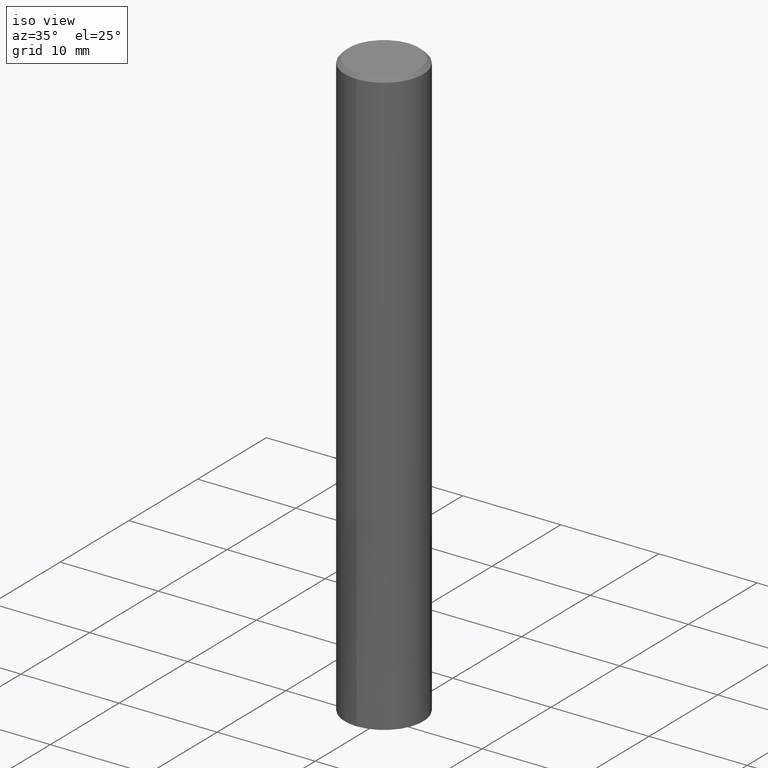
[diagram: clean part render]
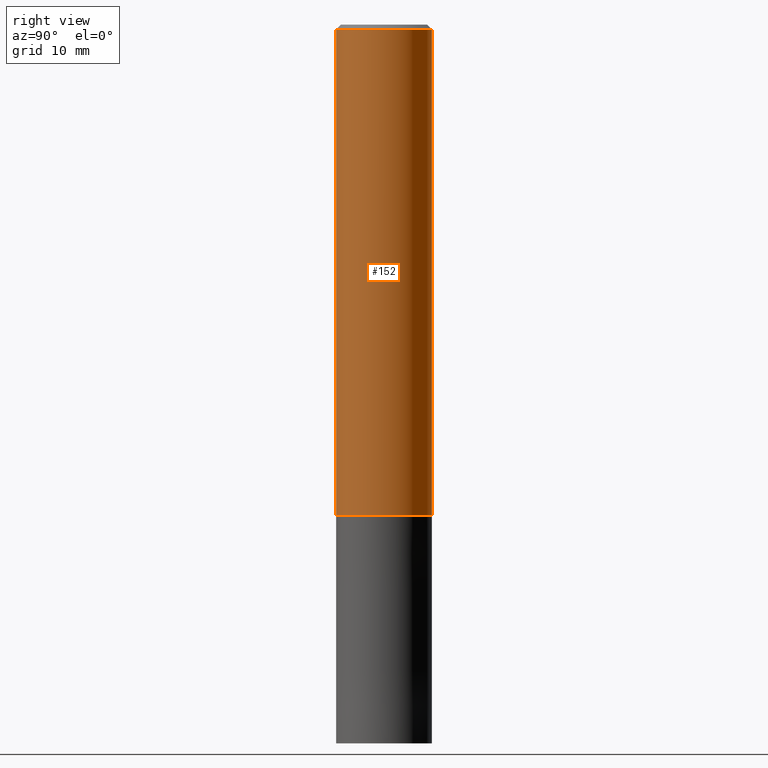
[diagram: tour spotlight — one face highlighted and labeled with its STEP entity id]
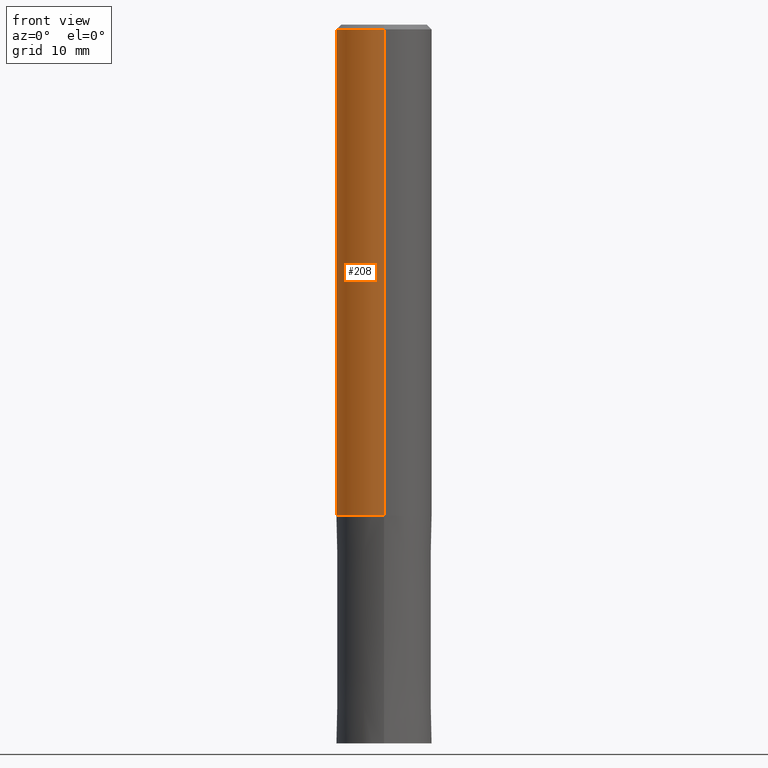
[diagram: tour spotlight — one face highlighted and labeled with its STEP entity id]
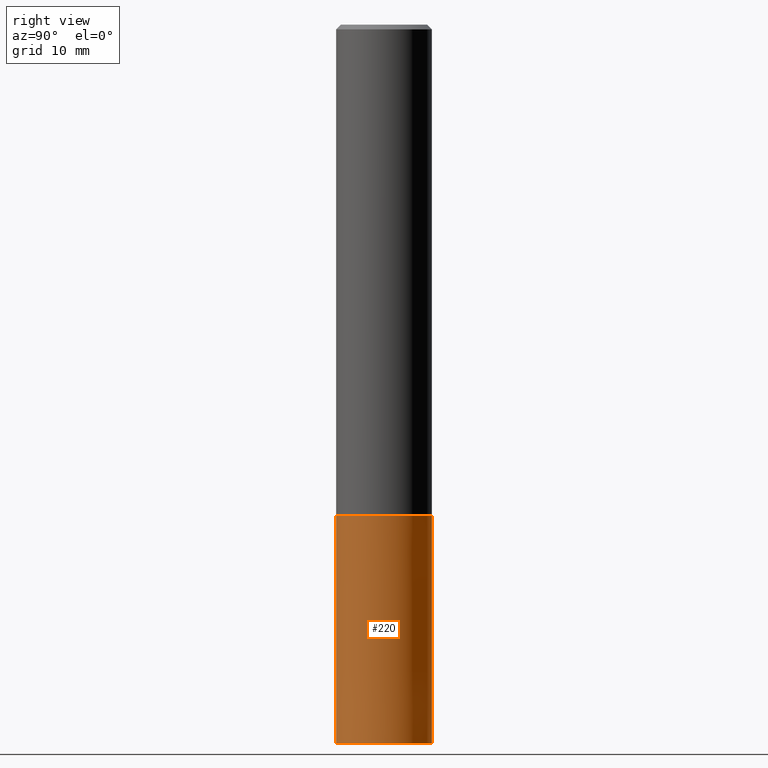
[diagram: tour spotlight — one face highlighted and labeled with its STEP entity id]
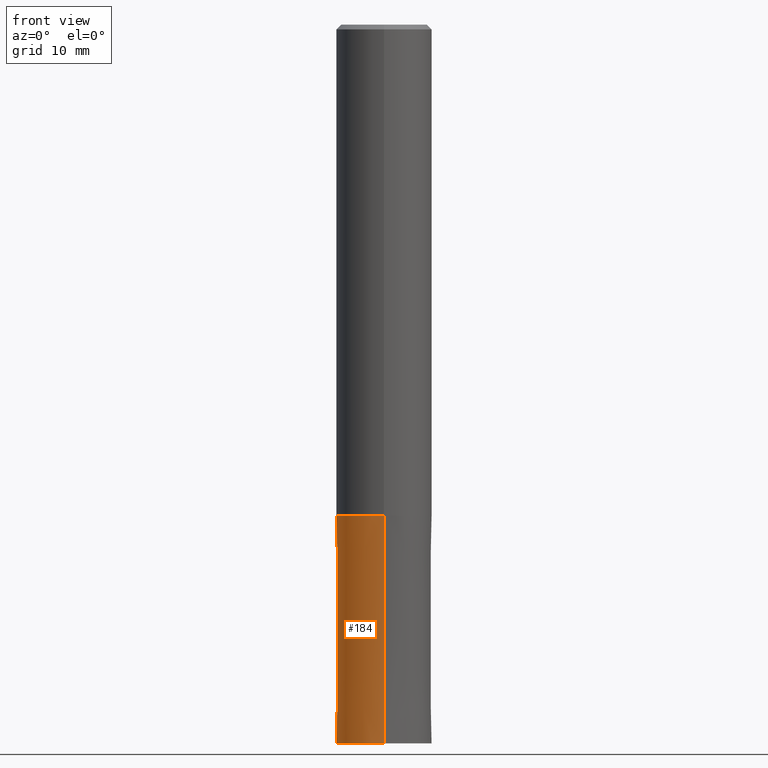
[diagram: tour spotlight — one face highlighted and labeled with its STEP entity id]
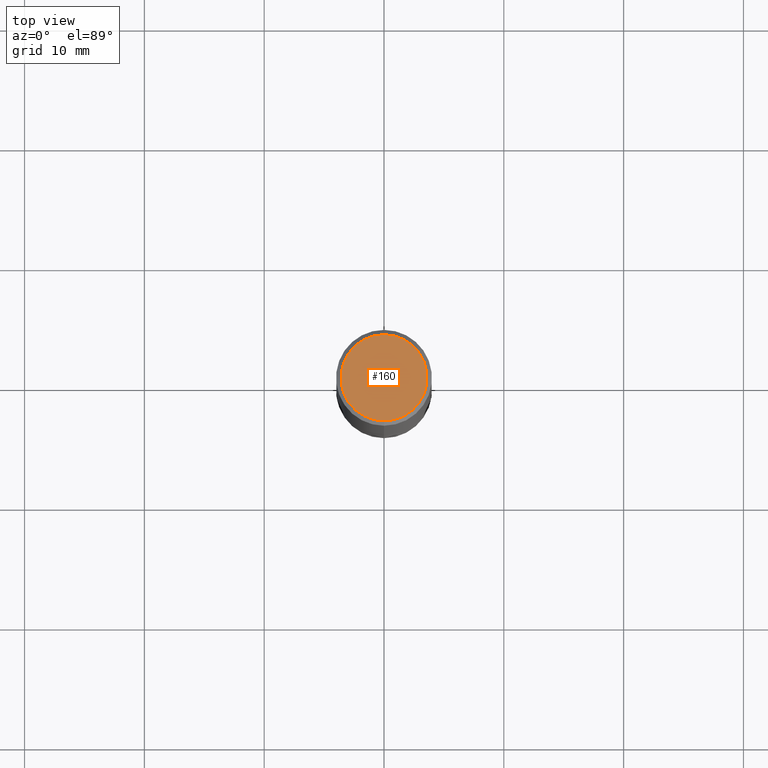
[diagram: tour spotlight — one face highlighted and labeled with its STEP entity id]
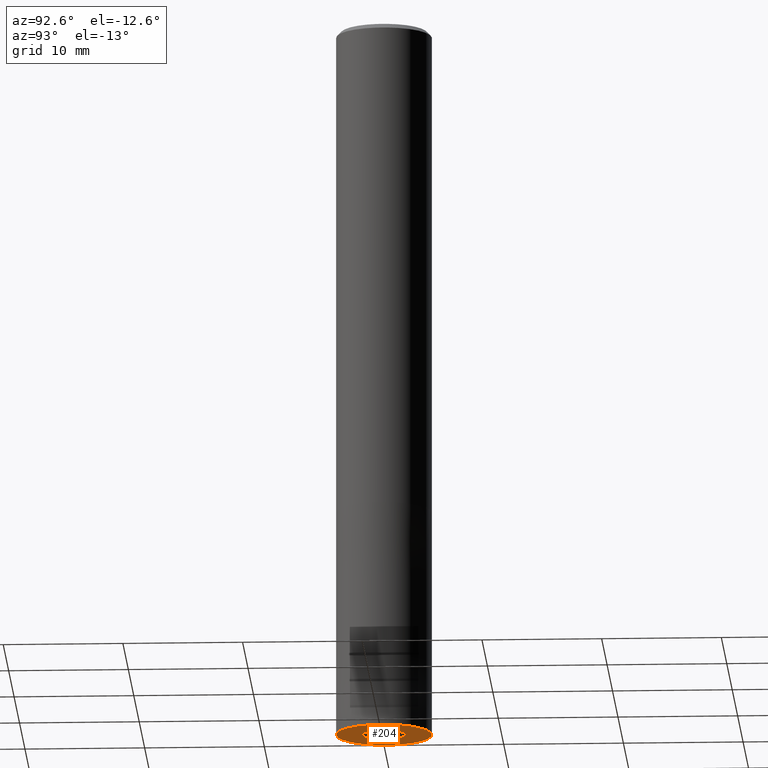
[diagram: tour spotlight — one face highlighted and labeled with its STEP entity id]
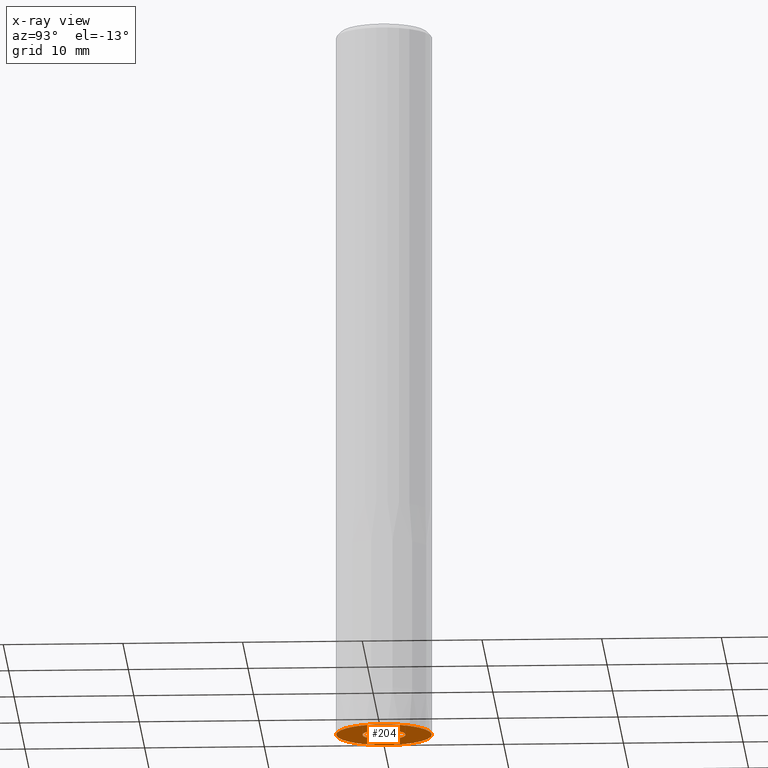
[diagram: x-ray of the same camera — body ghosted, this tour face saturated]
A machine part: a face-by-face anatomy tour. The part has 15 B-rep faces; the first image is the clean iso view, then the 6 largest visible faces are spotlighted one at a time (largest first), each with its STEP entity span.

Face 1 — right view, entity #152. In plain terms, the highlighted cylindrical surface (partial cylindrical patch) has radius 4 mm, axis along (-0, -0, 1).
Definition (entity closure, byte-faithful):
#96=EDGE_CURVE('',#158,#166,#241,.T.);
#102=EDGE_CURVE('',#166,#178,#247,.T.);
#116=EDGE_CURVE('',#142,#158,#261,.T.);
#142=VERTEX_POINT('',#290);
#152=ADVANCED_FACE('',(#302),#303,.T.);
#158=VERTEX_POINT('',#309);
#166=VERTEX_POINT('',#318);
#174=EDGE_CURVE('',#142,#178,#327,.T.);
#178=VERTEX_POINT('',#332);
#241=CIRCLE('',#397,4.0);
#247=LINE('',#404,#405);
#261=LINE('',#427,#428);
#290=CARTESIAN_POINT('',(0.0,4.0,-0.399999999999999));
#302=FACE_OUTER_BOUND('',#476,.T.);
#303=CYLINDRICAL_SURFACE('',#477,4.0);
#309=CARTESIAN_POINT('',(0.0,4.0,-41.0));
#318=CARTESIAN_POINT('',(4.89842541528951E-016,-4.0,-41.0));
#327=CIRCLE('',#506,4.0);
#332=CARTESIAN_POINT('',(4.89842541528951E-016,-4.0,-0.399999999999999));
#397=AXIS2_PLACEMENT_3D('',#576,#577,#578);
#404=CARTESIAN_POINT('',(4.89842541528951E-016,-4.0,-20.7));
#405=VECTOR('',#579,1.0);
#427=CARTESIAN_POINT('',(-4.89842541528951E-016,4.0,-20.7));
#428=VECTOR('',#591,1.0);
#476=EDGE_LOOP('',(#642,#643,#644,#645));
#477=AXIS2_PLACEMENT_3D('',#646,#647,#648);
#506=AXIS2_PLACEMENT_3D('',#670,#671,#672);
#576=CARTESIAN_POINT('',(0.0,0.0,-41.0));
#577=DIRECTION('',(0.0,0.0,-1.0));
#578=DIRECTION('',(0.0,1.0,0.0));
#579=DIRECTION('',(-0.0,-0.0,1.0));
#591=DIRECTION('',(0.0,0.0,-1.0));
#642=ORIENTED_EDGE('',*,*,#116,.F.);
#643=ORIENTED_EDGE('',*,*,#174,.T.);
#644=ORIENTED_EDGE('',*,*,#102,.F.);
#645=ORIENTED_EDGE('',*,*,#96,.F.);
#646=CARTESIAN_POINT('',(0.0,0.0,-20.7));
#647=DIRECTION('',(-0.0,-0.0,1.0));
#648=DIRECTION('',(0.0,1.0,0.0));
#670=CARTESIAN_POINT('',(0.0,0.0,-0.399999999999999));
#671=DIRECTION('',(0.0,0.0,-1.0));
#672=DIRECTION('',(0.0,1.0,0.0));

Face 2 — front view, entity #208. In plain terms, the highlighted cylindrical surface (partial cylindrical patch) has radius 4 mm, axis along (-0, -0, 1).
Definition (entity closure, byte-faithful):
#102=EDGE_CURVE('',#166,#178,#247,.T.);
#116=EDGE_CURVE('',#142,#158,#261,.T.);
#130=EDGE_CURVE('',#166,#158,#278,.T.);
#142=VERTEX_POINT('',#290);
#158=VERTEX_POINT('',#309);
#166=VERTEX_POINT('',#318);
#178=VERTEX_POINT('',#332);
#196=EDGE_CURVE('',#178,#142,#354,.T.);
#208=ADVANCED_FACE('',(#368),#369,.T.);
#247=LINE('',#404,#405);
#261=LINE('',#427,#428);
#278=CIRCLE('',#450,4.0);
#290=CARTESIAN_POINT('',(0.0,4.0,-0.399999999999999));
#309=CARTESIAN_POINT('',(0.0,4.0,-41.0));
#318=CARTESIAN_POINT('',(4.89842541528951E-016,-4.0,-41.0));
#332=CARTESIAN_POINT('',(4.89842541528951E-016,-4.0,-0.399999999999999));
#354=CIRCLE('',#539,4.0);
#368=FACE_OUTER_BOUND('',#558,.T.);
#369=CYLINDRICAL_SURFACE('',#559,4.0);
#404=CARTESIAN_POINT('',(4.89842541528951E-016,-4.0,-20.7));
#405=VECTOR('',#579,1.0);
#427=CARTESIAN_POINT('',(-4.89842541528951E-016,4.0,-20.7));
#428=VECTOR('',#591,1.0);
#450=AXIS2_PLACEMENT_3D('',#613,#614,#615);
#539=AXIS2_PLACEMENT_3D('',#715,#716,#717);
#558=EDGE_LOOP('',(#732,#733,#734,#735));
#559=AXIS2_PLACEMENT_3D('',#736,#737,#738);
#579=DIRECTION('',(-0.0,-0.0,1.0));
#591=DIRECTION('',(0.0,0.0,-1.0));
#613=CARTESIAN_POINT('',(0.0,0.0,-41.0));
#614=DIRECTION('',(0.0,0.0,-1.0));
#615=DIRECTION('',(0.0,1.0,0.0));
#715=CARTESIAN_POINT('',(0.0,0.0,-0.399999999999999));
#716=DIRECTION('',(0.0,0.0,-1.0));
#717=DIRECTION('',(0.0,1.0,0.0));
#732=ORIENTED_EDGE('',*,*,#116,.T.);
#733=ORIENTED_EDGE('',*,*,#130,.F.);
#734=ORIENTED_EDGE('',*,*,#102,.T.);
#735=ORIENTED_EDGE('',*,*,#196,.T.);
#736=CARTESIAN_POINT('',(0.0,0.0,-20.7));
#737=DIRECTION('',(-0.0,-0.0,1.0));
#738=DIRECTION('',(0.0,1.0,0.0));

Face 3 — right view, entity #220. In plain terms, the highlighted conical surface has half-angle 0 deg.
Definition (entity closure, byte-faithful):
#100=VERTEX_POINT('',#245);
#108=EDGE_CURVE('',#172,#140,#253,.T.);
#112=EDGE_CURVE('',#172,#218,#257,.T.);
#140=VERTEX_POINT('',#288);
#148=EDGE_CURVE('',#100,#140,#297,.T.);
#170=EDGE_CURVE('',#218,#100,#323,.T.);
#172=VERTEX_POINT('',#325);
#218=VERTEX_POINT('',#380);
#220=ADVANCED_FACE('',(#382),#383,.T.);
#245=CARTESIAN_POINT('',(4.89842541528951E-016,-4.0,-60.0));
#253=CIRCLE('',#415,3.9999);
#257=LINE('',#421,#422);
#288=CARTESIAN_POINT('',(4.89830295465413E-016,-3.9999,-41.0));
#297=LINE('',#470,#471);
#323=CIRCLE('',#501,4.0);
#325=CARTESIAN_POINT('',(0.0,3.9999,-41.0));
#380=CARTESIAN_POINT('',(0.0,4.0,-60.0));
#382=FACE_OUTER_BOUND('',#573,.T.);
#383=CONICAL_SURFACE('',#574,3.99995,5.26315789469935E-006);
#415=AXIS2_PLACEMENT_3D('',#584,#585,#586);
#421=CARTESIAN_POINT('',(-4.89836418497182E-016,3.99995,-50.5));
#422=VECTOR('',#590,1.0);
#470=CARTESIAN_POINT('',(4.89836418497182E-016,-3.99995,-50.5));
#471=VECTOR('',#632,1.0);
#501=AXIS2_PLACEMENT_3D('',#667,#668,#669);
#573=EDGE_LOOP('',(#751,#752,#753,#754));
#574=AXIS2_PLACEMENT_3D('',#755,#756,#757);
#584=CARTESIAN_POINT('',(0.0,0.0,-41.0));
#585=DIRECTION('',(0.0,0.0,-1.0));
#586=DIRECTION('',(0.0,1.0,0.0));
#590=DIRECTION('',(-6.44529659898948E-022,5.26315789467505E-006,-0.99999999998615));
#632=DIRECTION('',(-6.44529659898947E-022,5.26315789467505E-006,0.99999999998615));
#667=CARTESIAN_POINT('',(0.0,0.0,-60.0));
#668=DIRECTION('',(0.0,0.0,-1.0));
#669=DIRECTION('',(0.0,1.0,0.0));
#751=ORIENTED_EDGE('',*,*,#112,.F.);
#752=ORIENTED_EDGE('',*,*,#108,.T.);
#753=ORIENTED_EDGE('',*,*,#148,.F.);
#754=ORIENTED_EDGE('',*,*,#170,.F.);
#755=CARTESIAN_POINT('',(0.0,0.0,-50.5));
#756=DIRECTION('',(0.0,-0.0,-1.0));
#757=DIRECTION('',(0.0,1.0,0.0));

Face 4 — front view, entity #184. In plain terms, the highlighted conical surface has half-angle 0 deg.
Definition (entity closure, byte-faithful):
#100=VERTEX_POINT('',#245);
#110=EDGE_CURVE('',#100,#218,#255,.T.);
#112=EDGE_CURVE('',#172,#218,#257,.T.);
#136=EDGE_CURVE('',#140,#172,#284,.T.);
#140=VERTEX_POINT('',#288);
#148=EDGE_CURVE('',#100,#140,#297,.T.);
#172=VERTEX_POINT('',#325);
#184=ADVANCED_FACE('',(#338),#339,.T.);
#218=VERTEX_POINT('',#380);
#245=CARTESIAN_POINT('',(4.89842541528951E-016,-4.0,-60.0));
#255=CIRCLE('',#418,4.0);
#257=LINE('',#421,#422);
#284=CIRCLE('',#457,3.9999);
#288=CARTESIAN_POINT('',(4.89830295465413E-016,-3.9999,-41.0));
#297=LINE('',#470,#471);
#325=CARTESIAN_POINT('',(0.0,3.9999,-41.0));
#338=FACE_OUTER_BOUND('',#520,.T.);
#339=CONICAL_SURFACE('',#521,3.99995,5.26315789469935E-006);
#380=CARTESIAN_POINT('',(0.0,4.0,-60.0));
#418=AXIS2_PLACEMENT_3D('',#587,#588,#589);
#421=CARTESIAN_POINT('',(-4.89836418497182E-016,3.99995,-50.5));
#422=VECTOR('',#590,1.0);
#457=AXIS2_PLACEMENT_3D('',#620,#621,#622);
#470=CARTESIAN_POINT('',(4.89836418497182E-016,-3.99995,-50.5));
#471=VECTOR('',#632,1.0);
#520=EDGE_LOOP('',(#686,#687,#688,#689));
#521=AXIS2_PLACEMENT_3D('',#690,#691,#692);
#587=CARTESIAN_POINT('',(0.0,0.0,-60.0));
#588=DIRECTION('',(0.0,0.0,-1.0));
#589=DIRECTION('',(0.0,1.0,0.0));
#590=DIRECTION('',(-6.44529659898948E-022,5.26315789467505E-006,-0.99999999998615));
#620=CARTESIAN_POINT('',(0.0,0.0,-41.0));
#621=DIRECTION('',(0.0,0.0,-1.0));
#622=DIRECTION('',(0.0,1.0,0.0));
#632=DIRECTION('',(-6.44529659898947E-022,5.26315789467505E-006,0.99999999998615));
#686=ORIENTED_EDGE('',*,*,#112,.T.);
#687=ORIENTED_EDGE('',*,*,#110,.F.);
#688=ORIENTED_EDGE('',*,*,#148,.T.);
#689=ORIENTED_EDGE('',*,*,#136,.T.);
#690=CARTESIAN_POINT('',(0.0,0.0,-50.5));
#691=DIRECTION('',(0.0,-0.0,-1.0));
#692=DIRECTION('',(0.0,1.0,0.0));

Face 5 — top view, entity #160. In plain terms, the highlighted planar face has unit normal (-0, 0, 1).
Definition (entity closure, byte-faithful):
#120=VERTEX_POINT('',#265);
#160=ADVANCED_FACE('',(#311),#312,.T.);
#162=VERTEX_POINT('',#314);
#202=EDGE_CURVE('',#120,#162,#360,.T.);
#216=EDGE_CURVE('',#162,#120,#378,.T.);
#265=CARTESIAN_POINT('',(0.0,3.6,0.0));
#311=FACE_OUTER_BOUND('',#486,.T.);
#312=PLANE('',#487);
#314=CARTESIAN_POINT('',(4.40858287376056E-016,-3.6,0.0));
#360=CIRCLE('',#548,3.6);
#378=CIRCLE('',#569,3.6);
#486=EDGE_LOOP('',(#653,#654));
#487=AXIS2_PLACEMENT_3D('',#655,#656,#657);
#548=AXIS2_PLACEMENT_3D('',#719,#720,#721);
#569=AXIS2_PLACEMENT_3D('',#747,#748,#749);
#653=ORIENTED_EDGE('',*,*,#202,.F.);
#654=ORIENTED_EDGE('',*,*,#216,.F.);
#655=CARTESIAN_POINT('',(0.0,1.8,0.0));
#656=DIRECTION('',(-0.0,0.0,1.0));
#657=DIRECTION('',(0.0,-1.0,0.0));
#719=CARTESIAN_POINT('',(0.0,0.0,0.0));
#720=DIRECTION('',(0.0,0.0,-1.0));
#721=DIRECTION('',(0.0,1.0,0.0));
#747=CARTESIAN_POINT('',(0.0,0.0,0.0));
#748=DIRECTION('',(0.0,0.0,-1.0));
#749=DIRECTION('',(0.0,1.0,0.0));

Face 6 — auxiliary view, entity #204. An x-ray twin of the same camera follows (body ghosted, this face saturated) — the face is partly hidden behind the body. In plain terms, the highlighted planar face has unit normal (0, 0, -1).
Definition (entity closure, byte-faithful):
#100=VERTEX_POINT('',#245);
#110=EDGE_CURVE('',#100,#218,#255,.T.);
#128=EDGE_CURVE('',#200,#146,#276,.T.);
#146=VERTEX_POINT('',#295);
#156=EDGE_CURVE('',#146,#200,#307,.T.);
#170=EDGE_CURVE('',#218,#100,#323,.T.);
#200=VERTEX_POINT('',#358);
#204=ADVANCED_FACE('',(#362,#363),#364,.T.);
#218=VERTEX_POINT('',#380);
#245=CARTESIAN_POINT('',(4.89842541528951E-016,-4.0,-60.0));
#255=CIRCLE('',#418,4.0);
#276=CIRCLE('',#447,1.8);
#295=CARTESIAN_POINT('',(0.0,1.8,-60.0));
#307=CIRCLE('',#482,1.8);
#323=CIRCLE('',#501,4.0);
#358=CARTESIAN_POINT('',(2.20429143688028E-016,-1.8,-60.0));
#362=FACE_OUTER_BOUND('',#550,.T.);
#363=FACE_BOUND('',#551,.T.);
#364=PLANE('',#552);
#380=CARTESIAN_POINT('',(0.0,4.0,-60.0));
#418=AXIS2_PLACEMENT_3D('',#587,#588,#589);
#447=AXIS2_PLACEMENT_3D('',#610,#611,#612);
#482=AXIS2_PLACEMENT_3D('',#649,#650,#651);
#501=AXIS2_PLACEMENT_3D('',#667,#668,#669);
#550=EDGE_LOOP('',(#723,#724));
#551=EDGE_LOOP('',(#725,#726));
#552=AXIS2_PLACEMENT_3D('',#727,#728,#729);
#587=CARTESIAN_POINT('',(0.0,0.0,-60.0));
#588=DIRECTION('',(0.0,0.0,-1.0));
#589=DIRECTION('',(0.0,1.0,0.0));
#610=CARTESIAN_POINT('',(0.0,0.0,-60.0));
#611=DIRECTION('',(0.0,0.0,-1.0));
#612=DIRECTION('',(0.0,1.0,0.0));
#649=CARTESIAN_POINT('',(0.0,0.0,-60.0));
#650=DIRECTION('',(0.0,0.0,-1.0));
#651=DIRECTION('',(0.0,1.0,0.0));
#667=CARTESIAN_POINT('',(0.0,0.0,-60.0));
#668=DIRECTION('',(0.0,0.0,-1.0));
#669=DIRECTION('',(0.0,1.0,0.0));
#723=ORIENTED_EDGE('',*,*,#170,.T.);
#724=ORIENTED_EDGE('',*,*,#110,.T.);
#725=ORIENTED_EDGE('',*,*,#156,.F.);
#726=ORIENTED_EDGE('',*,*,#128,.F.);
#727=CARTESIAN_POINT('',(0.0,2.8975,-60.0));
#728=DIRECTION('',(0.0,0.0,-1.0));
#729=DIRECTION('',(0.0,1.0,0.0));